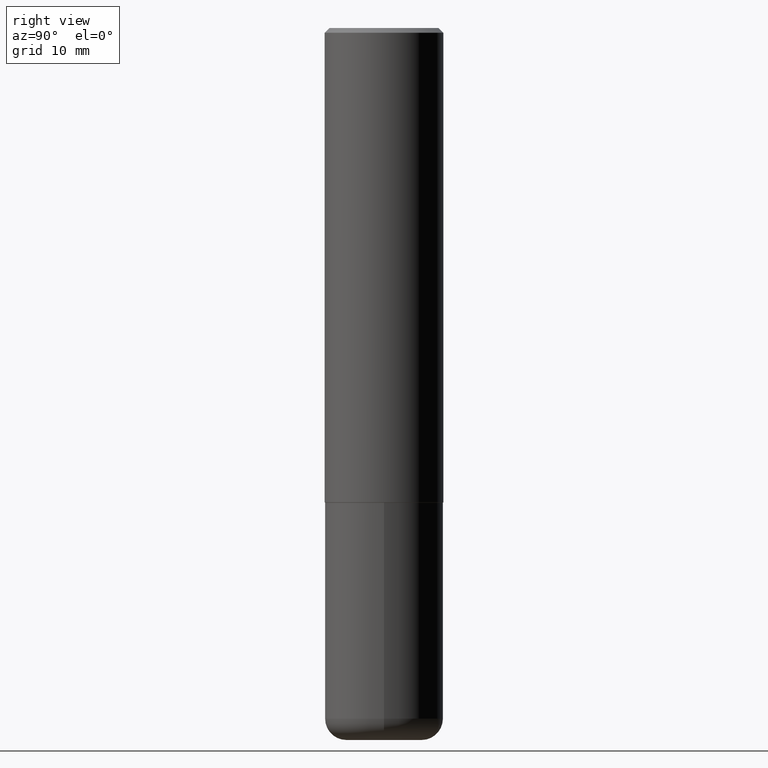
[diagram: clean part render]
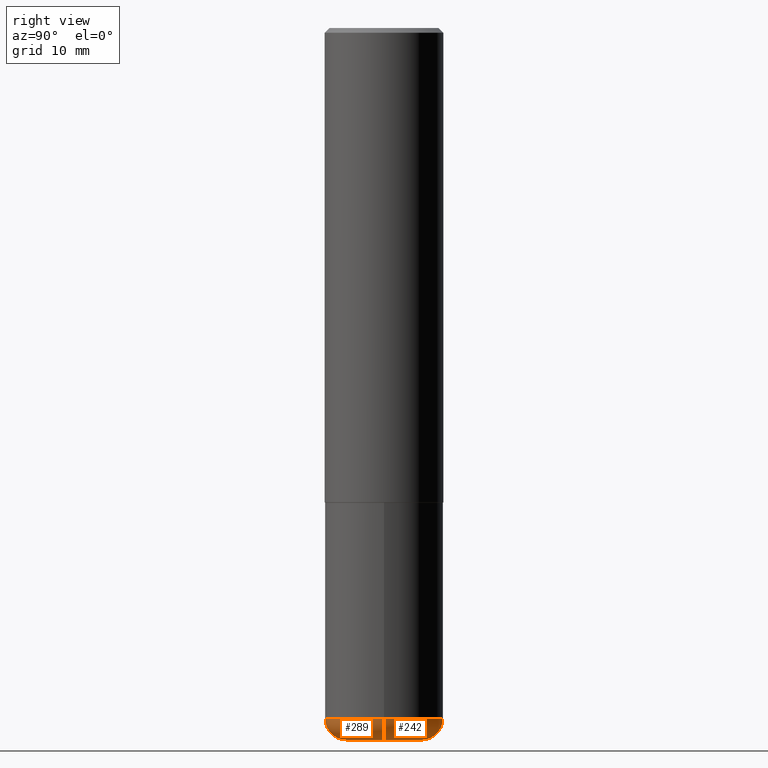
[diagram: same view with one multi-face feature highlighted, each face labeled with its STEP entity id]
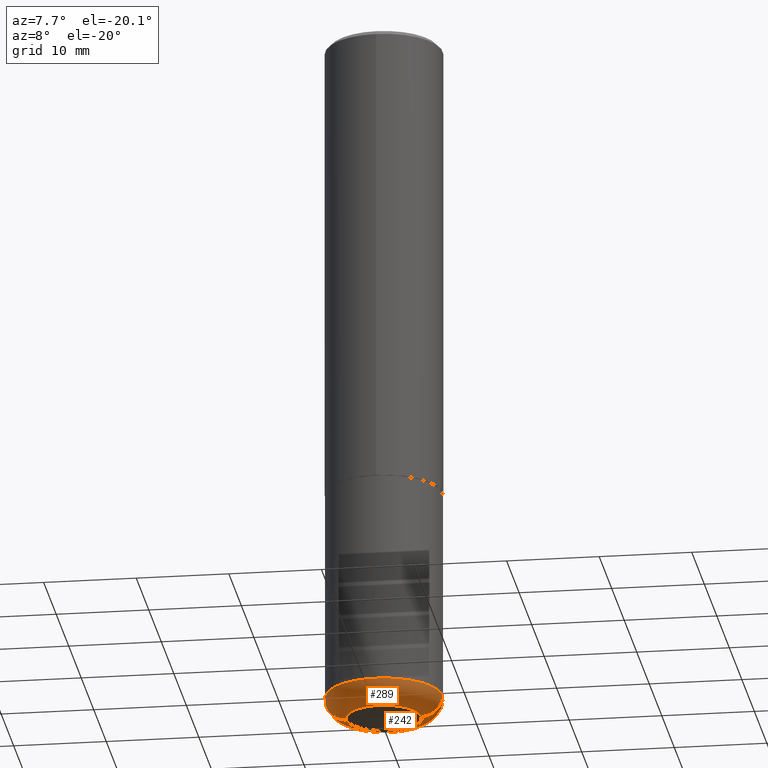
[diagram: same view with one multi-face feature highlighted, each face labeled with its STEP entity id]
A machine part, right view. The highlighted faces form ONE feature: a constant-radius fillet chain: 2 tangent blend faces with common blend radius 2.286 mm. The faces share edges in the B-rep.
A second angle (auxiliary view) of the same feature is appended — it is thin or edge-on in the first view.
Their STEP definitions:
[1] entity #242 (Torus):
#14 = CARTESIAN_POINT ( 'NONE',  ( -0.1600000000000000033, -9.023342318817394938E-15, -2.910000000000000586 ) ) ;
#15 = EDGE_CURVE ( 'NONE', #43, #235, #219, .T. ) ;
#16 = DIRECTION ( 'NONE',  ( 1.000000000000000000, -6.982962677686265133E-15, 4.883557194083112340E-29 ) ) ;
#32 = CARTESIAN_POINT ( 'NONE',  ( 7.116314225998749245E-29, -1.016021069603355467E-14, -2.910000000000000586 ) ) ;
#40 = ORIENTED_EDGE ( 'NONE', *, *, #15, .T. ) ;
#43 = VERTEX_POINT ( 'NONE', #296 ) ;
#70 = DIRECTION ( 'NONE',  ( -1.000000000000000000, 7.105427357601006592E-15, 0.000000000000000000 ) ) ;
#72 = VERTEX_POINT ( 'NONE', #89 ) ;
#84 = DIRECTION ( 'NONE',  ( -2.445468806185136597E-29, 3.491481338843145583E-15, 1.000000000000000000 ) ) ;
#86 = CARTESIAN_POINT ( 'NONE',  ( 0.1600000000000000033, -1.127748472446335797E-14, -2.910000000000000586 ) ) ;
#89 = CARTESIAN_POINT ( 'NONE',  ( 0.2500000000000000000, -1.190595136545512292E-14, -2.910000000000000586 ) ) ;
#115 = CIRCLE ( 'NONE', #354, 0.1600000000000000033 ) ;
#118 = CARTESIAN_POINT ( 'NONE',  ( 7.116314225998749245E-29, -1.016021069603355467E-14, -2.910000000000000586 ) ) ;
#125 = FACE_OUTER_BOUND ( 'NONE', #398, .T. ) ;
#130 = AXIS2_PLACEMENT_3D ( 'NONE', #14, #336, #70 ) ;
#140 = EDGE_CURVE ( 'NONE', #72, #235, #143, .T. ) ;
#143 = CIRCLE ( 'NONE', #238, 0.2500000000000000555 ) ;
#164 = EDGE_CURVE ( 'NONE', #360, #72, #221, .T. ) ;
#216 = DIRECTION ( 'NONE',  ( -2.445468806185136597E-29, 3.491481338843145583E-15, 1.000000000000000000 ) ) ;
#219 = CIRCLE ( 'NONE', #130, 0.08999999999999992728 ) ;
#221 = CIRCLE ( 'NONE', #300, 0.08999999999999992728 ) ;
#229 = CARTESIAN_POINT ( 'NONE',  ( 7.336406418555409790E-29, -1.047444401652943635E-14, -3.000000000000000444 ) ) ;
#235 = VERTEX_POINT ( 'NONE', #375 ) ;
#238 = AXIS2_PLACEMENT_3D ( 'NONE', #118, #216, #249 ) ;
#242 = ADVANCED_FACE ( 'NONE', ( #125 ), #266, .T. ) ;
#249 = DIRECTION ( 'NONE',  ( 1.000000000000000000, -6.982962677686269077E-15, 0.000000000000000000 ) ) ;
#266 = TOROIDAL_SURFACE ( 'NONE', #275, 0.1600000000000000033, 0.08999999999999994116 ) ;
#275 = AXIS2_PLACEMENT_3D ( 'NONE', #32, #292, #16 ) ;
#285 = DIRECTION ( 'NONE',  ( 1.000000000000000000, -6.982962677686273810E-15, 0.000000000000000000 ) ) ;
#292 = DIRECTION ( 'NONE',  ( -2.445468806185136597E-29, 3.491481338843145583E-15, 1.000000000000000000 ) ) ;
#296 = CARTESIAN_POINT ( 'NONE',  ( -0.1600000000000000033, -8.860714747973290413E-15, -3.000000000000000444 ) ) ;
#300 = AXIS2_PLACEMENT_3D ( 'NONE', #86, #347, #285 ) ;
#315 = ORIENTED_EDGE ( 'NONE', *, *, #341, .T. ) ;
#323 = CARTESIAN_POINT ( 'NONE',  ( 0.1600000000000000033, -1.159171804495923808E-14, -3.000000000000000444 ) ) ;
#336 = DIRECTION ( 'NONE',  ( 7.105427357601001859E-15, 1.000000000000000000, -3.491481338843145583E-15 ) ) ;
#337 = ORIENTED_EDGE ( 'NONE', *, *, #164, .F. ) ;
#341 = EDGE_CURVE ( 'NONE', #360, #43, #115, .T. ) ;
#347 = DIRECTION ( 'NONE',  ( -6.982962677686266711E-15, -1.000000000000000000, 3.491481338843145583E-15 ) ) ;
#354 = AXIS2_PLACEMENT_3D ( 'NONE', #229, #84, #356 ) ;
#356 = DIRECTION ( 'NONE',  ( 1.000000000000000000, -6.982962677686259611E-15, 0.000000000000000000 ) ) ;
#360 = VERTEX_POINT ( 'NONE', #323 ) ;
#375 = CARTESIAN_POINT ( 'NONE',  ( -0.2500000000000000000, -8.383853856633304202E-15, -2.910000000000000586 ) ) ;
#396 = ORIENTED_EDGE ( 'NONE', *, *, #140, .F. ) ;
#398 = EDGE_LOOP ( 'NONE', ( #315, #40, #396, #337 ) ) ;
[2] entity #289 (Torus):
#14 = CARTESIAN_POINT ( 'NONE',  ( -0.1600000000000000033, -9.023342318817394938E-15, -2.910000000000000586 ) ) ;
#15 = EDGE_CURVE ( 'NONE', #43, #235, #219, .T. ) ;
#22 = CARTESIAN_POINT ( 'NONE',  ( 7.116314225998749245E-29, -1.016021069603355467E-14, -2.910000000000000586 ) ) ;
#33 = EDGE_LOOP ( 'NONE', ( #418, #96, #255, #201 ) ) ;
#38 = CIRCLE ( 'NONE', #268, 0.1600000000000000033 ) ;
#43 = VERTEX_POINT ( 'NONE', #296 ) ;
#65 = DIRECTION ( 'NONE',  ( -2.445468806185136597E-29, 3.491481338843145583E-15, 1.000000000000000000 ) ) ;
#68 = DIRECTION ( 'NONE',  ( 1.000000000000000000, -6.982962677686265133E-15, 4.883557194083112340E-29 ) ) ;
#70 = DIRECTION ( 'NONE',  ( -1.000000000000000000, 7.105427357601006592E-15, 0.000000000000000000 ) ) ;
#72 = VERTEX_POINT ( 'NONE', #89 ) ;
#86 = CARTESIAN_POINT ( 'NONE',  ( 0.1600000000000000033, -1.127748472446335797E-14, -2.910000000000000586 ) ) ;
#89 = CARTESIAN_POINT ( 'NONE',  ( 0.2500000000000000000, -1.190595136545512292E-14, -2.910000000000000586 ) ) ;
#90 = DIRECTION ( 'NONE',  ( 1.000000000000000000, -6.982962677686269077E-15, 0.000000000000000000 ) ) ;
#96 = ORIENTED_EDGE ( 'NONE', *, *, #187, .T. ) ;
#124 = AXIS2_PLACEMENT_3D ( 'NONE', #22, #65, #68 ) ;
#130 = AXIS2_PLACEMENT_3D ( 'NONE', #14, #336, #70 ) ;
#149 = TOROIDAL_SURFACE ( 'NONE', #124, 0.1600000000000000033, 0.08999999999999994116 ) ;
#157 = CARTESIAN_POINT ( 'NONE',  ( 7.116314225998749245E-29, -1.016021069603355467E-14, -2.910000000000000586 ) ) ;
#164 = EDGE_CURVE ( 'NONE', #360, #72, #221, .T. ) ;
#184 = DIRECTION ( 'NONE',  ( -2.445468806185136597E-29, 3.491481338843145583E-15, 1.000000000000000000 ) ) ;
#187 = EDGE_CURVE ( 'NONE', #43, #360, #38, .T. ) ;
#201 = ORIENTED_EDGE ( 'NONE', *, *, #359, .F. ) ;
#219 = CIRCLE ( 'NONE', #130, 0.08999999999999992728 ) ;
#221 = CIRCLE ( 'NONE', #300, 0.08999999999999992728 ) ;
#235 = VERTEX_POINT ( 'NONE', #375 ) ;
#246 = CARTESIAN_POINT ( 'NONE',  ( 7.336406418555409790E-29, -1.047444401652943635E-14, -3.000000000000000444 ) ) ;
#255 = ORIENTED_EDGE ( 'NONE', *, *, #164, .T. ) ;
#268 = AXIS2_PLACEMENT_3D ( 'NONE', #246, #184, #373 ) ;
#285 = DIRECTION ( 'NONE',  ( 1.000000000000000000, -6.982962677686273810E-15, 0.000000000000000000 ) ) ;
#289 = ADVANCED_FACE ( 'NONE', ( #381 ), #149, .T. ) ;
#296 = CARTESIAN_POINT ( 'NONE',  ( -0.1600000000000000033, -8.860714747973290413E-15, -3.000000000000000444 ) ) ;
#300 = AXIS2_PLACEMENT_3D ( 'NONE', #86, #347, #285 ) ;
#319 = AXIS2_PLACEMENT_3D ( 'NONE', #157, #412, #90 ) ;
#323 = CARTESIAN_POINT ( 'NONE',  ( 0.1600000000000000033, -1.159171804495923808E-14, -3.000000000000000444 ) ) ;
#336 = DIRECTION ( 'NONE',  ( 7.105427357601001859E-15, 1.000000000000000000, -3.491481338843145583E-15 ) ) ;
#347 = DIRECTION ( 'NONE',  ( -6.982962677686266711E-15, -1.000000000000000000, 3.491481338843145583E-15 ) ) ;
#359 = EDGE_CURVE ( 'NONE', #235, #72, #371, .T. ) ;
#360 = VERTEX_POINT ( 'NONE', #323 ) ;
#371 = CIRCLE ( 'NONE', #319, 0.2500000000000000555 ) ;
#373 = DIRECTION ( 'NONE',  ( 1.000000000000000000, -6.982962677686259611E-15, 0.000000000000000000 ) ) ;
#375 = CARTESIAN_POINT ( 'NONE',  ( -0.2500000000000000000, -8.383853856633304202E-15, -2.910000000000000586 ) ) ;
#381 = FACE_OUTER_BOUND ( 'NONE', #33, .T. ) ;
#412 = DIRECTION ( 'NONE',  ( -2.445468806185136597E-29, 3.491481338843145583E-15, 1.000000000000000000 ) ) ;
#418 = ORIENTED_EDGE ( 'NONE', *, *, #15, .F. ) ;